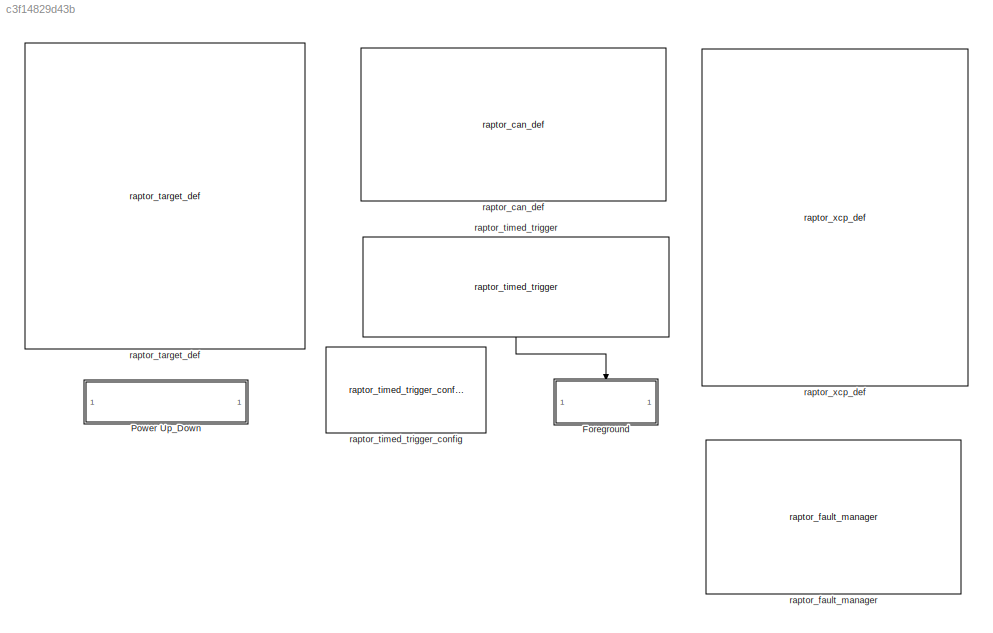
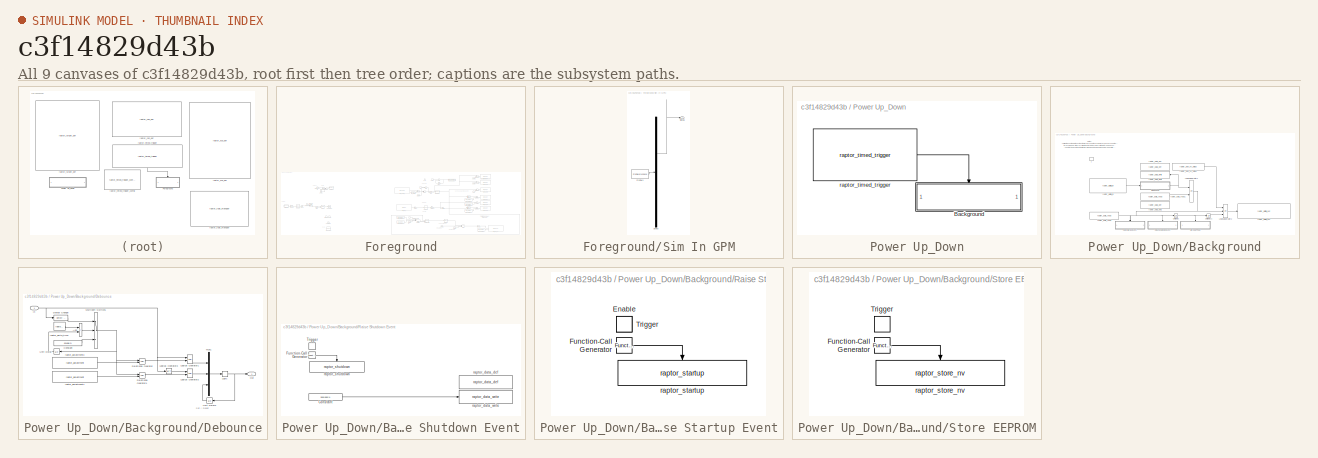
[diagram: thumbnail index - all 9 canvases of the model, root first then tree order]
MODEL slx_c3f14829d43b
KIND model
CONFIG AbsTol = auto
CONFIG EnableMultiTasking = on
CONFIG FixedStep = 0.005
CONFIG InitFcn = try, model_open; catch, end
CONFIG MaxStep = auto
CONFIG MinStep = auto
CONFIG PreLoadFcn = try, model_open; catch, disp('Error occurred while executing model pre-load callback: model_open.m'); disp('Please assure that the MATLAB working directory is set to the model directory before opening.'); end
CONFIG RelTol = 1e-3
CONFIG SampleTimeConstraint = Unconstrained
CONFIG SolverName = FixedStepDiscrete
CONFIG StartTime = 0.0
CONFIG StopTime = 10.0
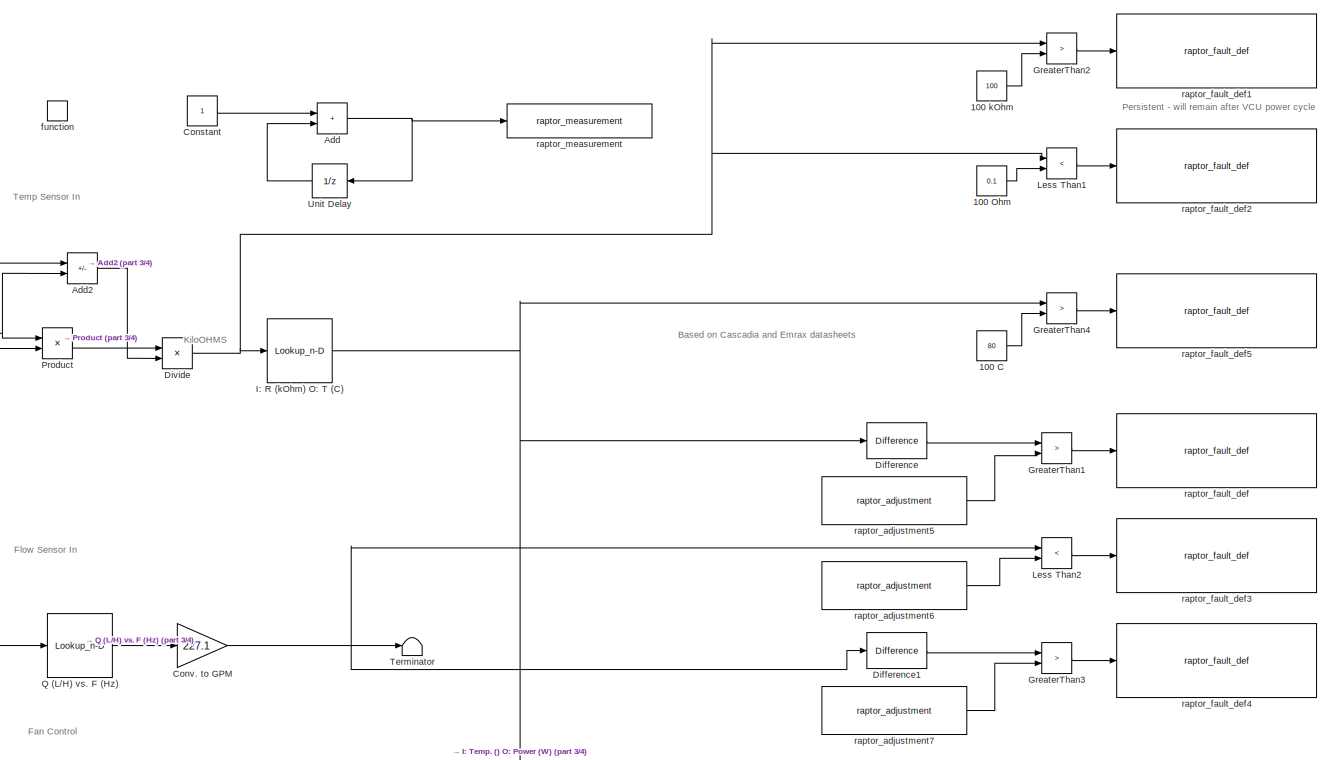
[diagram: Foreground - part 1/4, middle right region]
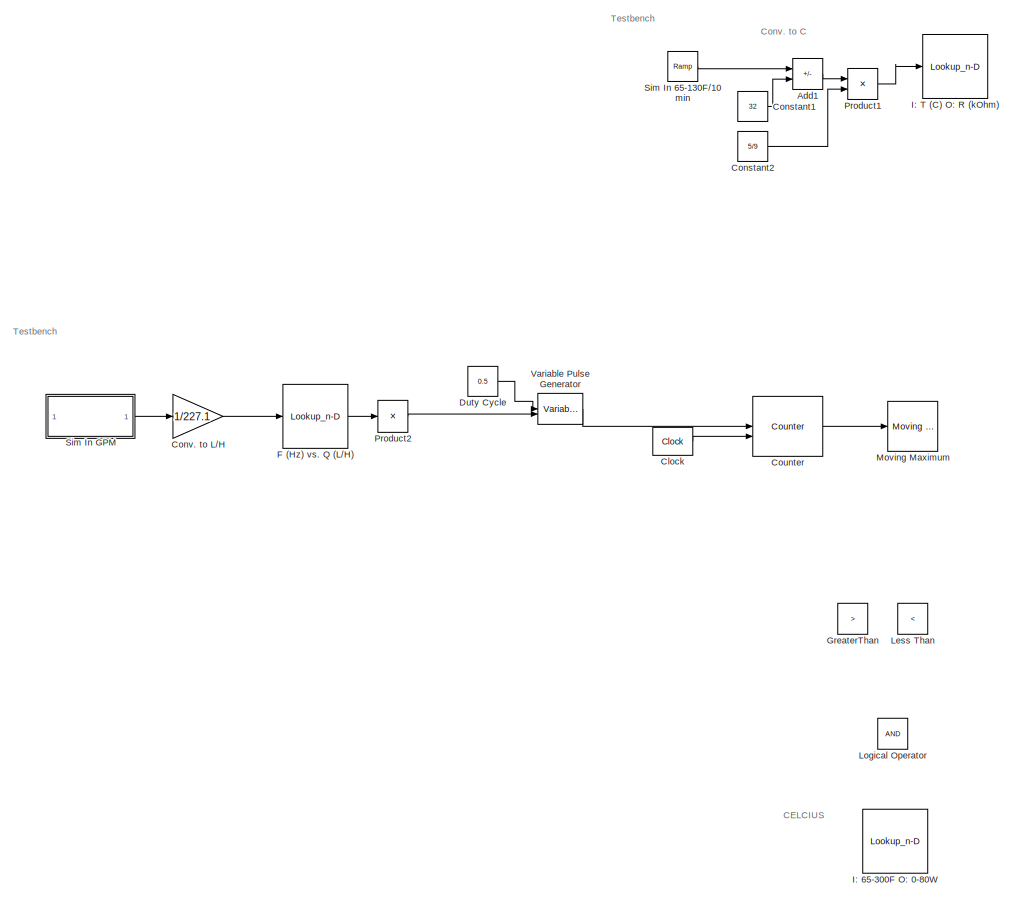
[diagram: Foreground - part 2/4, left side, full height]
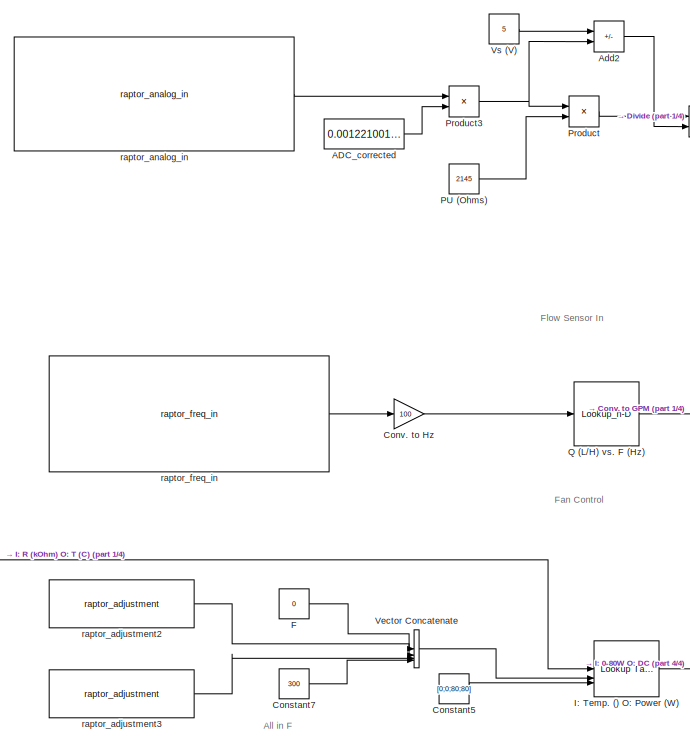
[diagram: Foreground - part 3/4, central region]
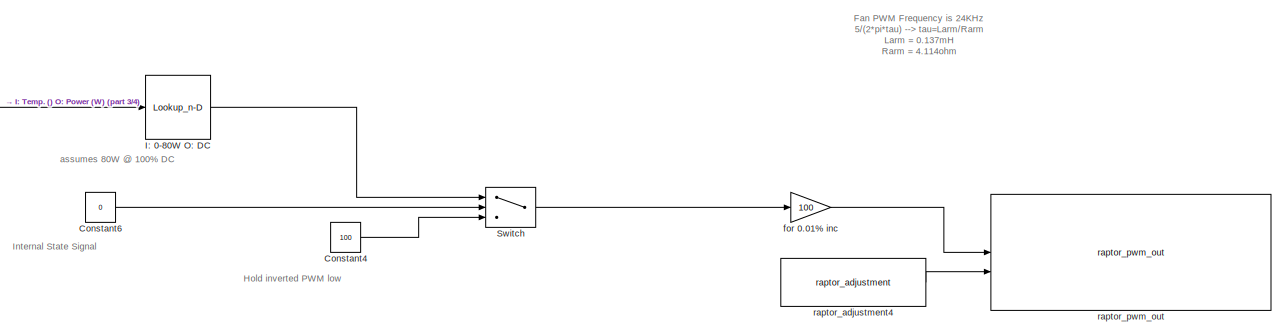
[diagram: Foreground - part 4/4, bottom right region]
BLOCK [SubSystem] Foreground
  RTWSystemCode = Nonreusable function
  TreatAsAtomicUnit = on
BLOCK [Constant] Foreground/100 C
  Value = 80
BLOCK [Constant] Foreground/100 Ohm
  Value = 0.1
BLOCK [Constant] Foreground/100 kOhm
  Value = 100
BLOCK [Constant] Foreground/ADC_corrected
  Value = 0.00122100122
BLOCK [Sum] Foreground/Add
  IconShape = rectangular
BLOCK [Sum] Foreground/Add1
  Commented = on
  IconShape = rectangular
  Inputs = +-
BLOCK [Sum] Foreground/Add2
  IconShape = rectangular
  Inputs = +-
BLOCK [Reference] Foreground/Clock  REF=simulink_extras/Flip Flops/Clock
  Commented = on
  SourceBlock = simulink_extras/Flip Flops/Clock
  SourceType = Digital clock
BLOCK [Constant] Foreground/Constant
BLOCK [Constant] Foreground/Constant1
  Commented = on
  Value = 32
BLOCK [Constant] Foreground/Constant2
  Commented = on
  Value = 5/9
BLOCK [Constant] Foreground/Constant4
  Value = 100
BLOCK [Constant] Foreground/Constant5
  Value = [0;0;80;80]
BLOCK [Constant] Foreground/Constant6
  Value = 0
BLOCK [Constant] Foreground/Constant7
  Value = 300
BLOCK [Gain] Foreground/Conv. to GPM
  Gain = 227.1
BLOCK [Gain] Foreground/Conv. to Hz
  Gain = 100
BLOCK [Gain] Foreground/Conv. to L//H
  Commented = on
  Gain = 1/227.1
BLOCK [Reference] Foreground/Counter  REF=dspswit3/Counter
  Commented = on
  SourceBlock = dspswit3/Counter
  SourceType = Counter
BLOCK [Reference] Foreground/Difference  REF=simulink/Discrete/Difference
  SourceBlock = simulink/Discrete/Difference
  SourceType = Difference
BLOCK [Reference] Foreground/Difference1  REF=simulink/Discrete/Difference
  SourceBlock = simulink/Discrete/Difference
  SourceType = Difference
BLOCK [Product] Foreground/Divide
  Inputs = */
BLOCK [Constant] Foreground/Duty Cycle
  Commented = on
  Value = 0.5
BLOCK [Constant] Foreground/F
  Value = 0
BLOCK [Lookup_n-D] Foreground/F (Hz) vs. Q (L//H)
  BreakpointsForDimension1 = [120;240;360;480;600;720]
  Commented = on
  InputPortMap = u0
  InternalRulePriority = Speed
  NumberOfTableDimensions = 1
  RndMeth = Simplest
  Table = [16;32.5;49.3;65.5;82;90.2]
BLOCK [RelationalOperator] Foreground/GreaterThan
  Commented = on
  InputSameDT = off
  Operator = >
  OutDataTypeStr = boolean
  RndMeth = Simplest
BLOCK [RelationalOperator] Foreground/GreaterThan1
  InputSameDT = off
  Operator = >
  OutDataTypeStr = boolean
  RndMeth = Simplest
BLOCK [RelationalOperator] Foreground/GreaterThan2
  InputSameDT = off
  Operator = >
  OutDataTypeStr = boolean
  RndMeth = Simplest
BLOCK [RelationalOperator] Foreground/GreaterThan3
  InputSameDT = off
  Operator = >
  OutDataTypeStr = boolean
  RndMeth = Simplest
BLOCK [RelationalOperator] Foreground/GreaterThan4
  InputSameDT = off
  Operator = >
  OutDataTypeStr = boolean
  RndMeth = Simplest
BLOCK [Lookup_n-D] Foreground/I: 0-80W O: DC
  BreakpointsForDimension1 = [0;5;10;15;20;25;30;35;40;45;50;55;60;65;70;75;80]
  InputPortMap = u0
  InternalRulePriority = Speed
  NumberOfTableDimensions = 1
  RndMeth = Simplest
  Table = [100;93.75;87.5;81.25;75;68.75;62.5;56.25;50;43.75;37.5;31.25;25;18.75;12.5;6.25;0]
BLOCK [Lookup_n-D] Foreground/I: 65-300F O: 0-80W 
  BreakpointsForDimension1 = [0;65;150;300]
  Commented = on
  InputPortMap = u0
  InternalRulePriority = Speed
  NumberOfTableDimensions = 1
  RndMeth = Simplest
  Table = [0;0;80;80]
BLOCK [Lookup_n-D] Foreground/I: R (kOhm) O: T (C)
  BreakpointsForDimension1 = [0.583;0.6601;0.7487;0.8508;0.9688;1.106;1.265;1.452;1.67;1.928;2.232;2.593;3.025;3.541;4.163;4.914;5.827;6.942;8.311;10;12.1;14.71;17.99;22.13;27.39]
  InputPortMap = u0
  InternalRulePriority = Speed
  NumberOfTableDimensions = 1
  RndMeth = Simplest
  Table = [120;115;110;105;100;95;90;85;80;75;70;65;60;55;50;45;40;35;30;25;20;15;10;5;0]
BLOCK [Lookup_n-D] Foreground/I: T (C) O: R (kOhm)
  BreakpointsForDimension1 = [0;5;10;15;20;25;30;35;40;45;50;55;60;65;70;75;80;85;90;95;100;105;110;115;120]
  Commented = on
  InputPortMap = u0
  InternalRulePriority = Speed
  NumberOfTableDimensions = 1
  RndMeth = Simplest
  Table = [27.39;22.13;17.99;14.71;12.1;10;8.311;6.942;5.827;4.914;4.163;3.541;3.025;2.593;2.232;1.928;1.67;1.452;1.265;1.106;0.9688;0.8508;0.7487;0.6601;0.583]
BLOCK [Reference] Foreground/I: Temp. () O: Power (W)  REF=simulink/Lookup
Tables/Lookup
Table
Dynamic
  SourceBlock = simulink/Lookup\nTables/Lookup\nTable\nDynamic
  SourceType = Lookup Table Dynamic
BLOCK [RelationalOperator] Foreground/Less Than
  Commented = on
  InputSameDT = off
  Operator = <
  OutDataTypeStr = boolean
  RndMeth = Simplest
BLOCK [RelationalOperator] Foreground/Less Than1
  InputSameDT = off
  Operator = <
  OutDataTypeStr = boolean
  RndMeth = Simplest
BLOCK [RelationalOperator] Foreground/Less Than2
  InputSameDT = off
  Operator = <
  OutDataTypeStr = boolean
  RndMeth = Simplest
BLOCK [Logic] Foreground/Logical Operator
  AllPortsSameDT = off
  Commented = on
  OutDataTypeStr = boolean
BLOCK [Reference] Foreground/Moving Maximum  REF=dspstat3/Moving
Maximum
  Commented = on
  SourceBlock = dspstat3/Moving\nMaximum
  SourceType = dsp.MovingMaximum
BLOCK [Constant] Foreground/PU (Ohms)
  Value = 2145
BLOCK [Product] Foreground/Product
BLOCK [Product] Foreground/Product1
  Commented = on
BLOCK [Product] Foreground/Product2
  Commented = on
  Inputs = /
BLOCK [Product] Foreground/Product3
BLOCK [Lookup_n-D] Foreground/Q (L//H) vs. F (Hz)
  BreakpointsForDimension1 = [16;32.5;49.3;65.5;82;90.2]
  ExtrapMethod = Clip
  InputPortMap = u0
  InternalRulePriority = Speed
  NumberOfTableDimensions = 1
  RndMeth = Simplest
  Table = [120;240;360;480;600;720]
BLOCK [Reference] Foreground/Sim In 65-130F//10min  REF=simulink/Sources/Ramp
  Commented = on
  SourceBlock = simulink/Sources/Ramp
  SourceType = Ramp
BLOCK [SubSystem] Foreground/Sim In GPM
  ClipboardFcn = sigbuilder_block('clipboard');
  CloseFcn = sigbuilder_block('close');
  Commented = on
  ContinueFcn = sigbuilder_block('continue');
  CopyFcn = sigbuilder_block('copy');
  DeleteFcn = sigbuilder_block('delete');
  LoadFcn = sigbuilder_block('load');
  MaskHideContents = on
  ModelCloseFcn = sigbuilder_block('modelClose');
  NameChangeFcn = sigbuilder_block('namechange');
  OpenFcn = sigbuilder_block('open',[437.6 199.2 550.4 400 ]);
  PauseFcn = sigbuilder_block('pause');
  PreSaveFcn = sigbuilder_block('preSave');
  StartFcn = sigbuilder_block('start');
  StopFcn = sigbuilder_block('stop');
  Tag = STV Subsys
BLOCK [Demux] Foreground/Sim In GPM/Demux
  DisplayOption = none
  Outputs = 1
  Tag = STV Demux
BLOCK [FromWorkspace] Foreground/Sim In GPM/FromWs
  Tag = STV FromWs
  VariableName = tuvar
BLOCK [Outport] Foreground/Sim In GPM/Signal 1
  Tag = STV Outport
BLOCK [Switch] Foreground/Switch
  Criteria = u2 > Threshold
  InputSameDT = off
  SaturateOnIntegerOverflow = off
BLOCK [Terminator] Foreground/Terminator
BLOCK [UnitDelay] Foreground/Unit Delay
  HasFrameUpgradeWarning = on
  NameLocation = top
  SampleTime = -1
BLOCK [VariablePulseGenerator] Foreground/Variable Pulse Generator
  Commented = on
  SampleTime = 0.1
BLOCK [Concatenate] Foreground/Vector Concatenate
  NameLocation = right
  NumInputs = 4
BLOCK [Constant] Foreground/Vs (V)
  Value = 5
BLOCK [Gain] Foreground/for 0.01% inc
  Gain = 100
  OutDataTypeStr = Inherit: Inherit via back propagation
BLOCK [TriggerPort] Foreground/function
  StatesWhenEnabling = held
  TriggerType = function-call
  VariantControl = Variant
BLOCK [Reference] Foreground/raptor_adjustment2  REF=Raptor_lib/Data Storage/raptor_adjustment
  SourceBlock = Raptor_lib/Data Storage/raptor_adjustment
  SourceProductName = Raptor
  SourceType = Adjustment
BLOCK [Reference] Foreground/raptor_adjustment3  REF=Raptor_lib/Data Storage/raptor_adjustment
  SourceBlock = Raptor_lib/Data Storage/raptor_adjustment
  SourceProductName = Raptor
  SourceType = Adjustment
BLOCK [Reference] Foreground/raptor_adjustment4  REF=Raptor_lib/Data Storage/raptor_adjustment
  SourceBlock = Raptor_lib/Data Storage/raptor_adjustment
  SourceProductName = Raptor
  SourceType = Adjustment
BLOCK [Reference] Foreground/raptor_adjustment5  REF=Raptor_lib/Data Storage/raptor_adjustment
  SourceBlock = Raptor_lib/Data Storage/raptor_adjustment
  SourceProductName = Raptor
  SourceType = Adjustment
BLOCK [Reference] Foreground/raptor_adjustment6  REF=Raptor_lib/Data Storage/raptor_adjustment
  SourceBlock = Raptor_lib/Data Storage/raptor_adjustment
  SourceProductName = Raptor
  SourceType = Adjustment
BLOCK [Reference] Foreground/raptor_adjustment7  REF=Raptor_lib/Data Storage/raptor_adjustment
  SourceBlock = Raptor_lib/Data Storage/raptor_adjustment
  SourceProductName = Raptor
  SourceType = Adjustment
BLOCK [Reference] Foreground/raptor_analog_in  REF=Raptor_lib/Input & Output/raptor_analog_in
  SourceBlock = Raptor_lib/Input & Output/raptor_analog_in
  SourceProductName = Raptor
  SourceType = Analog Input
BLOCK [Reference] Foreground/raptor_fault_def  REF=Raptor_lib/Faults/raptor_fault_def
  SourceBlock = Raptor_lib/Faults/raptor_fault_def
  SourceProductName = Raptor
  SourceType = Fault Definition
BLOCK [Reference] Foreground/raptor_fault_def1  REF=Raptor_lib/Faults/raptor_fault_def
  SourceBlock = Raptor_lib/Faults/raptor_fault_def
  SourceProductName = Raptor
  SourceType = Fault Definition
BLOCK [Reference] Foreground/raptor_fault_def2  REF=Raptor_lib/Faults/raptor_fault_def
  SourceBlock = Raptor_lib/Faults/raptor_fault_def
  SourceProductName = Raptor
  SourceType = Fault Definition
BLOCK [Reference] Foreground/raptor_fault_def3  REF=Raptor_lib/Faults/raptor_fault_def
  SourceBlock = Raptor_lib/Faults/raptor_fault_def
  SourceProductName = Raptor
  SourceType = Fault Definition
BLOCK [Reference] Foreground/raptor_fault_def4  REF=Raptor_lib/Faults/raptor_fault_def
  SourceBlock = Raptor_lib/Faults/raptor_fault_def
  SourceProductName = Raptor
  SourceType = Fault Definition
BLOCK [Reference] Foreground/raptor_fault_def5  REF=Raptor_lib/Faults/raptor_fault_def
  SourceBlock = Raptor_lib/Faults/raptor_fault_def
  SourceProductName = Raptor
  SourceType = Fault Definition
BLOCK [Reference] Foreground/raptor_freq_in  REF=Raptor_lib/Input & Output/raptor_freq_in
  SourceBlock = Raptor_lib/Input & Output/raptor_freq_in
  SourceProductName = Raptor
  SourceType = Frequency Input Block
BLOCK [Reference] Foreground/raptor_measurement  REF=Raptor_lib/Data Storage/raptor_measurement
  SourceBlock = Raptor_lib/Data Storage/raptor_measurement
  SourceProductName = Raptor
  SourceType = Measurement
BLOCK [Reference] Foreground/raptor_pwm_out  REF=Raptor_lib/Input & Output/raptor_pwm_out
  SourceBlock = Raptor_lib/Input & Output/raptor_pwm_out
  SourceProductName = Raptor
  SourceType = PWM Output Block
BLOCK [SubSystem] Power Up_Down
BLOCK [SubSystem] Power Up_Down/Background
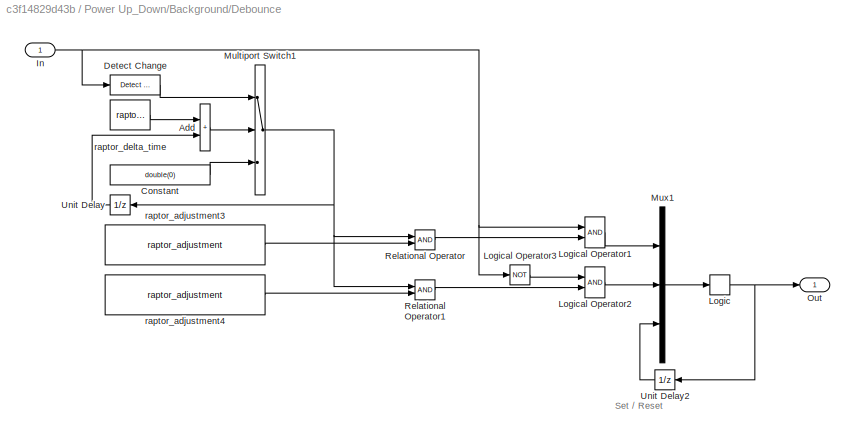
BLOCK [SubSystem] Power Up_Down/Background/Debounce
BLOCK [Sum] Power Up_Down/Background/Debounce/Add
  IconShape = rectangular
BLOCK [Constant] Power Up_Down/Background/Debounce/Constant
  Value = double(0)
BLOCK [Reference] Power Up_Down/Background/Debounce/Detect Change  REF=simulink/Logic and Bit
Operations/Detect
Change
  SourceBlock = simulink/Logic and Bit\nOperations/Detect\nChange
  SourceType = Detect Change
BLOCK [Inport] Power Up_Down/Background/Debounce/In
BLOCK [CombinatorialLogic] Power Up_Down/Background/Debounce/Logic
  TruthTable = [0;1;0;0;1;1;0;0]
BLOCK [Logic] Power Up_Down/Background/Debounce/Logical Operator1
  AllPortsSameDT = off
  OutDataTypeStr = boolean
BLOCK [Logic] Power Up_Down/Background/Debounce/Logical Operator2
  AllPortsSameDT = off
  OutDataTypeStr = boolean
BLOCK [Logic] Power Up_Down/Background/Debounce/Logical Operator3
  AllPortsSameDT = off
  Inputs = 1
  Operator = NOT
  OutDataTypeStr = boolean
BLOCK [MultiPortSwitch] Power Up_Down/Background/Debounce/Multiport Switch1
  DataPortOrder = Zero-based contiguous
  InputSameDT = off
  Inputs = 2
  SaturateOnIntegerOverflow = off
  zeroidx = on
BLOCK [Mux] Power Up_Down/Background/Debounce/Mux1
  DisplayOption = bar
  Inputs = 3
BLOCK [Outport] Power Up_Down/Background/Debounce/Out
  VectorParamsAs1DForOutWhenUnconnected = off
BLOCK [RelationalOperator] Power Up_Down/Background/Debounce/Relational Operator
  InputSameDT = off
  OutDataTypeStr = boolean
BLOCK [RelationalOperator] Power Up_Down/Background/Debounce/Relational Operator1
  InputSameDT = off
  OutDataTypeStr = boolean
BLOCK [UnitDelay] Power Up_Down/Background/Debounce/Unit Delay
  HasFrameUpgradeWarning = on
  SampleTime = -1
BLOCK [UnitDelay] Power Up_Down/Background/Debounce/Unit Delay2
  HasFrameUpgradeWarning = on
  InitialCondition = 1
  SampleTime = -1
BLOCK [Reference] Power Up_Down/Background/Debounce/raptor_adjustment3  REF=Raptor_lib/Data Storage/raptor_adjustment
  SourceBlock = Raptor_lib/Data Storage/raptor_adjustment
  SourceProductName = Raptor
  SourceType = Adjustment
BLOCK [Reference] Power Up_Down/Background/Debounce/raptor_adjustment4  REF=Raptor_lib/Data Storage/raptor_adjustment
  SourceBlock = Raptor_lib/Data Storage/raptor_adjustment
  SourceProductName = Raptor
  SourceType = Adjustment
BLOCK [Reference] Power Up_Down/Background/Debounce/raptor_delta_time  REF=Raptor_lib/Triggers/raptor_delta_time
  SourceBlock = Raptor_lib/Triggers/raptor_delta_time
  SourceProductName = Raptor
  SourceType = Delta Time
BLOCK [Logic] Power Up_Down/Background/Logical Operator1
  Operator = OR
  OutDataTypeStr = boolean
BLOCK [Logic] Power Up_Down/Background/Logical Operator2
  Inputs = 3
  Operator = OR
  OutDataTypeStr = boolean
BLOCK [SubSystem] Power Up_Down/Background/Raise Shutdown Event
  TreatAsAtomicUnit = on
BLOCK [Constant] Power Up_Down/Background/Raise Shutdown Event/Constant
  Value = boolean(1)
BLOCK [Reference] Power Up_Down/Background/Raise Shutdown Event/Function-Call Generator  REF=simulink/Ports &
Subsystems/Function-Call
Generator
  SourceBlock = simulink/Ports &\nSubsystems/Function-Call\nGenerator
  SourceType = Function-Call Generator
BLOCK [TriggerPort] Power Up_Down/Background/Raise Shutdown Event/Trigger
  StatesWhenEnabling = held
  TriggerType = falling
  VariantControl = Variant
BLOCK [Reference] Power Up_Down/Background/Raise Shutdown Event/raptor_data_def  REF=Raptor_lib/Data Storage/raptor_data_def
  SourceBlock = Raptor_lib/Data Storage/raptor_data_def
  SourceProductName = Raptor
  SourceType = Data Store Definition Block
BLOCK [Reference] Power Up_Down/Background/Raise Shutdown Event/raptor_data_write  REF=Raptor_lib/Data Storage/raptor_data_write
  SourceBlock = Raptor_lib/Data Storage/raptor_data_write
  SourceProductName = Raptor
  SourceType = Data Write Block
BLOCK [Reference] Power Up_Down/Background/Raise Shutdown Event/raptor_shutdown  REF=Raptor_lib/Triggers/raptor_shutdown
  SourceBlock = Raptor_lib/Triggers/raptor_shutdown
  SourceProductName = Raptor
  SourceType = Shutdown
BLOCK [SubSystem] Power Up_Down/Background/Raise Startup Event
  TreatAsAtomicUnit = on
BLOCK [EnablePort] Power Up_Down/Background/Raise Startup Event/Enable
BLOCK [Reference] Power Up_Down/Background/Raise Startup Event/Function-Call Generator  REF=simulink/Ports &
Subsystems/Function-Call
Generator
  SourceBlock = simulink/Ports &\nSubsystems/Function-Call\nGenerator
  SourceType = Function-Call Generator
BLOCK [TriggerPort] Power Up_Down/Background/Raise Startup Event/Trigger
  StatesWhenEnabling = held
  VariantControl = Variant
BLOCK [Reference] Power Up_Down/Background/Raise Startup Event/raptor_startup  REF=Raptor_lib/Triggers/raptor_startup
  SourceBlock = Raptor_lib/Triggers/raptor_startup
  SourceProductName = Raptor
  SourceType = Startup
BLOCK [SubSystem] Power Up_Down/Background/Store EEPROM
  TreatAsAtomicUnit = on
BLOCK [Reference] Power Up_Down/Background/Store EEPROM/Function-Call Generator  REF=simulink/Ports &
Subsystems/Function-Call
Generator
  SourceBlock = simulink/Ports &\nSubsystems/Function-Call\nGenerator
  SourceType = Function-Call Generator
BLOCK [TriggerPort] Power Up_Down/Background/Store EEPROM/Trigger
  StatesWhenEnabling = held
  TriggerType = falling
  VariantControl = Variant
BLOCK [Reference] Power Up_Down/Background/Store EEPROM/raptor_store_nv  REF=Raptor_lib/Data Storage/raptor_store_nv
  SourceBlock = Raptor_lib/Data Storage/raptor_store_nv
  SourceProductName = Raptor
  SourceType = Store NonVolatile
BLOCK [UnitDelay] Power Up_Down/Background/Unit Delay
  HasFrameUpgradeWarning = on
  SampleTime = -1
BLOCK [UnitDelay] Power Up_Down/Background/Unit Delay1
  HasFrameUpgradeWarning = on
  SampleTime = -1
BLOCK [TriggerPort] Power Up_Down/Background/f
  TriggerType = function-call
  VariantControl = Variant
  ZeroCross = off
BLOCK [Reference] Power Up_Down/Background/raptor_data_def  REF=Raptor_lib/Data Storage/raptor_data_def
  SourceBlock = Raptor_lib/Data Storage/raptor_data_def
  SourceProductName = Raptor
  SourceType = Data Store Definition Block
BLOCK [Reference] Power Up_Down/Background/raptor_data_def1  REF=Raptor_lib/Data Storage/raptor_data_def
  SourceBlock = Raptor_lib/Data Storage/raptor_data_def
  SourceProductName = Raptor
  SourceType = Data Store Definition Block
BLOCK [Reference] Power Up_Down/Background/raptor_data_read  REF=Raptor_lib/Data Storage/raptor_data_read
  SourceBlock = Raptor_lib/Data Storage/raptor_data_read
  SourceProductName = Raptor
  SourceType = Data Read Block
BLOCK [Reference] Power Up_Down/Background/raptor_data_read1  REF=Raptor_lib/Data Storage/raptor_data_read
  SourceBlock = Raptor_lib/Data Storage/raptor_data_read
  SourceProductName = Raptor
  SourceType = Data Read Block
BLOCK [Reference] Power Up_Down/Background/raptor_data_write  REF=Raptor_lib/Data Storage/raptor_data_write
  SourceBlock = Raptor_lib/Data Storage/raptor_data_write
  SourceProductName = Raptor
  SourceType = Data Write Block
BLOCK [Reference] Power Up_Down/Background/raptor_digital_in  REF=Raptor_lib/Input & Output/raptor_digital_in
  SourceBlock = Raptor_lib/Input & Output/raptor_digital_in
  SourceProductName = Raptor
  SourceType = Digital Input Block
BLOCK [Reference] Power Up_Down/Background/raptor_digital_out  REF=Raptor_lib/Input & Output/raptor_digital_out
  SourceBlock = Raptor_lib/Input & Output/raptor_digital_out
  SourceProductName = Raptor
  SourceType = Digital Output
BLOCK [Reference] Power Up_Down/Background/raptor_sfun_nv_status  REF=Raptor_lib/Data Storage/raptor_sfun_nv_status
  SourceBlock = Raptor_lib/Data Storage/raptor_sfun_nv_status
  SourceProductName = Raptor
  SourceType = Nonvolatile Status
BLOCK [Reference] Power Up_Down/raptor_timed_trigger  REF=Raptor_lib/Triggers/raptor_timed_trigger
  SourceBlock = Raptor_lib/Triggers/raptor_timed_trigger
  SourceProductName = Raptor
  SourceType = Timed Trigger Block
BLOCK [Reference] raptor_can_def  REF=Raptor_lib/CAN/raptor_can_def
  SourceBlock = Raptor_lib/CAN/raptor_can_def
  SourceProductName = Raptor
  SourceType = CAN Definition
BLOCK [Reference] raptor_fault_manager  REF=Raptor_lib/Faults/raptor_fault_manager
  SourceBlock = Raptor_lib/Faults/raptor_fault_manager
  SourceProductName = Raptor
  SourceType = Fault Manager
BLOCK [Reference] raptor_target_def  REF=Raptor_lib/Configuration/raptor_target_def
  SourceBlock = Raptor_lib/Configuration/raptor_target_def
  SourceProductName = Raptor
  SourceType = Target Definition Block
BLOCK [Reference] raptor_timed_trigger  REF=Raptor_lib/Triggers/raptor_timed_trigger
  NameLocation = left
  SourceBlock = Raptor_lib/Triggers/raptor_timed_trigger
  SourceProductName = Raptor
  SourceType = Timed Trigger Block
BLOCK [Reference] raptor_timed_trigger_config  REF=Raptor_lib/Triggers/raptor_timed_trigger_config
  SourceBlock = Raptor_lib/Triggers/raptor_timed_trigger_config
  SourceProductName = Raptor
  SourceType = Timed Trigger Configuration Block
BLOCK [Reference] raptor_xcp_def  REF=Raptor_lib/Configuration/raptor_xcp_def
  SourceBlock = Raptor_lib/Configuration/raptor_xcp_def
  SourceProductName = Raptor
  SourceType = XCP Definition Block
ANNOTATION Foreground: Fan Control
ANNOTATION Foreground: Flow Sensor In
ANNOTATION Foreground: Temp Sensor In
ANNOTATION Foreground: All in F
ANNOTATION Foreground: Based on Cascadia and Emrax datasheets
ANNOTATION Foreground: CELCIUS
ANNOTATION Foreground: Conv. to C
ANNOTATION Foreground: Fan PWM Frequency is 24KHz 5/(2*pi*tau) --> tau=Larm/Rarm Larm = 0.137mH Rarm = 4.114ohm
ANNOTATION Foreground: Hold inverted PWM low
ANNOTATION Foreground: Internal State Signal
ANNOTATION Foreground: KiloOHMS
ANNOTATION Foreground: Persistent - will remain after VCU power cycle
ANNOTATION Foreground: Testbench
ANNOTATION Foreground: assumes 80W @ 100% DC
ANNOTATION Power Up_Down/Background: Notes : - Calling the shutdown task stops the foreground tasks. However, background tasks continue, so the reading of key switch must be in this subsystem to allow the module to resume operation (by calling the startup task) if keyswitch is turned back on before the module actually turns off. - The Startup Event is automatically called when the module is powered on after being completely off. The ...<+96ch>
ANNOTATION Power Up_Down/Background/Debounce: Set / Reset
LINE Foreground/100 C:1 -> Foreground/GreaterThan4:2
LINE Foreground/100 Ohm:1 -> Foreground/Less Than1:2
LINE Foreground/100 kOhm:1 -> Foreground/GreaterThan2:2
LINE Foreground/ADC_corrected:1 -> Foreground/Product3:2
LINE Foreground/Add1:1 -> Foreground/Product1:1
LINE Foreground/Add2:1 -> Foreground/Divide:2
NET Foreground/Add:1 -> Foreground/Unit Delay:1, Foreground/raptor_measurement:1
LINE Foreground/Clock:1 -> Foreground/Counter:2
LINE Foreground/Constant1:1 -> Foreground/Add1:2
LINE Foreground/Constant2:1 -> Foreground/Product1:2
LINE Foreground/Constant4:1 -> Foreground/Switch:3
LINE Foreground/Constant5:1 -> Foreground/I: Temp. () O: Power (W):3
LINE Foreground/Constant6:1 -> Foreground/Switch:2
LINE Foreground/Constant7:1 -> Foreground/Vector Concatenate:4
LINE Foreground/Constant:1 -> Foreground/Add:1
NET Foreground/Conv. to GPM:1 -> Foreground/Difference1:1, Foreground/Less Than2:1, Foreground/Terminator:1
LINE Foreground/Conv. to Hz:1 -> Foreground/Q (L//H) vs. F (Hz):1
LINE Foreground/Conv. to L//H:1 -> Foreground/F (Hz) vs. Q (L//H):1
LINE Foreground/Counter:1 -> Foreground/Moving Maximum:1
LINE Foreground/Difference1:1 -> Foreground/GreaterThan3:1
LINE Foreground/Difference:1 -> Foreground/GreaterThan1:1
NET Foreground/Divide:1 -> Foreground/GreaterThan2:1, Foreground/I: R (kOhm) O: T (C):1, Foreground/Less Than1:1
LINE Foreground/Duty Cycle:1 -> Foreground/Variable Pulse Generator:1
LINE Foreground/F (Hz) vs. Q (L//H):1 -> Foreground/Product2:1
LINE Foreground/F:1 -> Foreground/Vector Concatenate:1
LINE Foreground/GreaterThan1:1 -> Foreground/raptor_fault_def:1
LINE Foreground/GreaterThan2:1 -> Foreground/raptor_fault_def1:1
LINE Foreground/GreaterThan3:1 -> Foreground/raptor_fault_def4:1
LINE Foreground/GreaterThan4:1 -> Foreground/raptor_fault_def5:1
LINE Foreground/I: 0-80W O: DC:1 -> Foreground/Switch:1
NET Foreground/I: R (kOhm) O: T (C):1 -> Foreground/Difference:1, Foreground/GreaterThan4:1, Foreground/I: Temp. () O: Power (W):1
LINE Foreground/I: Temp. () O: Power (W):1 -> Foreground/I: 0-80W O: DC:1
LINE Foreground/Less Than1:1 -> Foreground/raptor_fault_def2:1
LINE Foreground/Less Than2:1 -> Foreground/raptor_fault_def3:1
LINE Foreground/PU (Ohms):1 -> Foreground/Product:2
LINE Foreground/Product1:1 -> Foreground/I: T (C) O: R (kOhm):1
LINE Foreground/Product2:1 -> Foreground/Variable Pulse Generator:2
NET Foreground/Product3:1 -> Foreground/Add2:2, Foreground/Product:1
LINE Foreground/Product:1 -> Foreground/Divide:1
LINE Foreground/Q (L//H) vs. F (Hz):1 -> Foreground/Conv. to GPM:1
LINE Foreground/Sim In 65-130F//10min:1 -> Foreground/Add1:1
LINE Foreground/Sim In GPM:1 -> Foreground/Conv. to L//H:1
LINE Foreground/Switch:1 -> Foreground/for 0.01% inc:1
LINE Foreground/Unit Delay:1 -> Foreground/Add:2
LINE Foreground/Variable Pulse Generator:1 -> Foreground/Counter:1
LINE Foreground/Vector Concatenate:1 -> Foreground/I: Temp. () O: Power (W):2
LINE Foreground/Vs (V):1 -> Foreground/Add2:1
LINE Foreground/for 0.01% inc:1 -> Foreground/raptor_pwm_out:1
LINE Foreground/raptor_adjustment2:1 -> Foreground/Vector Concatenate:2
LINE Foreground/raptor_adjustment3:1 -> Foreground/Vector Concatenate:3
LINE Foreground/raptor_adjustment4:1 -> Foreground/raptor_pwm_out:2
LINE Foreground/raptor_adjustment5:1 -> Foreground/GreaterThan1:2
LINE Foreground/raptor_adjustment6:1 -> Foreground/Less Than2:2
LINE Foreground/raptor_adjustment7:1 -> Foreground/GreaterThan3:2
LINE Foreground/raptor_analog_in:1 -> Foreground/Product3:1
LINE Foreground/raptor_freq_in:1 -> Foreground/Conv. to Hz:1
LINE Power Up_Down/Background/Debounce/Add:1 -> Power Up_Down/Background/Debounce/Multiport Switch1:2
LINE Power Up_Down/Background/Debounce/Constant:1 -> Power Up_Down/Background/Debounce/Multiport Switch1:3
LINE Power Up_Down/Background/Debounce/Detect Change:1 -> Power Up_Down/Background/Debounce/Multiport Switch1:1
NET Power Up_Down/Background/Debounce/In:1 -> Power Up_Down/Background/Debounce/Detect Change:1, Power Up_Down/Background/Debounce/Logical Operator1:1, Power Up_Down/Background/Debounce/Logical Operator3:1
NET Power Up_Down/Background/Debounce/Logic:1 -> Power Up_Down/Background/Debounce/Out:1, Power Up_Down/Background/Debounce/Unit Delay2:1
LINE Power Up_Down/Background/Debounce/Logical Operator1:1 -> Power Up_Down/Background/Debounce/Mux1:1
LINE Power Up_Down/Background/Debounce/Logical Operator2:1 -> Power Up_Down/Background/Debounce/Mux1:2
LINE Power Up_Down/Background/Debounce/Logical Operator3:1 -> Power Up_Down/Background/Debounce/Logical Operator2:1
NET Power Up_Down/Background/Debounce/Multiport Switch1:1 -> Power Up_Down/Background/Debounce/Relational Operator1:1, Power Up_Down/Background/Debounce/Relational Operator:1, Power Up_Down/Background/Debounce/Unit Delay:1
LINE Power Up_Down/Background/Debounce/Mux1:1 -> Power Up_Down/Background/Debounce/Logic:1
LINE Power Up_Down/Background/Debounce/Relational Operator1:1 -> Power Up_Down/Background/Debounce/Logical Operator2:2
LINE Power Up_Down/Background/Debounce/Relational Operator:1 -> Power Up_Down/Background/Debounce/Logical Operator1:2
LINE Power Up_Down/Background/Debounce/Unit Delay2:1 -> Power Up_Down/Background/Debounce/Mux1:3
LINE Power Up_Down/Background/Debounce/Unit Delay:1 -> Power Up_Down/Background/Debounce/Add:2
LINE Power Up_Down/Background/Debounce/raptor_adjustment3:1 -> Power Up_Down/Background/Debounce/Relational Operator:2
LINE Power Up_Down/Background/Debounce/raptor_adjustment4:1 -> Power Up_Down/Background/Debounce/Relational Operator1:2
LINE Power Up_Down/Background/Debounce/raptor_delta_time:1 -> Power Up_Down/Background/Debounce/Add:1
NET Power Up_Down/Background/Debounce:1 -> Power Up_Down/Background/Logical Operator1:1, Power Up_Down/Background/raptor_data_write:1
NET Power Up_Down/Background/Logical Operator1:1 -> Power Up_Down/Background/Logical Operator2:2, Power Up_Down/Background/Raise Shutdown Event:trigger, Power Up_Down/Background/Raise Startup Event:trigger, Power Up_Down/Background/Unit Delay:1
LINE Power Up_Down/Background/Logical Operator2:1 -> Power Up_Down/Background/raptor_digital_out:1
LINE Power Up_Down/Background/Raise Shutdown Event/Constant:1 -> Power Up_Down/Background/Raise Shutdown Event/raptor_data_write:1
LINE Power Up_Down/Background/Raise Shutdown Event/Function-Call Generator:1 -> Power Up_Down/Background/Raise Shutdown Event/raptor_shutdown:trigger
LINE Power Up_Down/Background/Raise Startup Event/Function-Call Generator:1 -> Power Up_Down/Background/Raise Startup Event/raptor_startup:trigger
LINE Power Up_Down/Background/Store EEPROM/Function-Call Generator:1 -> Power Up_Down/Background/Store EEPROM/raptor_store_nv:trigger
LINE Power Up_Down/Background/Unit Delay1:1 -> Power Up_Down/Background/Logical Operator2:3
NET Power Up_Down/Background/Unit Delay:1 -> Power Up_Down/Background/Store EEPROM:trigger, Power Up_Down/Background/Unit Delay1:1
LINE Power Up_Down/Background/raptor_data_read1:1 -> Power Up_Down/Background/Logical Operator1:2
LINE Power Up_Down/Background/raptor_data_read:1 -> Power Up_Down/Background/Raise Startup Event:enable
LINE Power Up_Down/Background/raptor_digital_in:1 -> Power Up_Down/Background/Debounce:1
LINE Power Up_Down/Background/raptor_sfun_nv_status:1 -> Power Up_Down/Background/Logical Operator2:1
LINE Power Up_Down/raptor_timed_trigger:1 -> Power Up_Down/Background:trigger
LINE raptor_timed_trigger:1 -> Foreground:trigger
note: NET lines group one-source signal fan-out (src -> all destinations, sorted); 1:1 wires keep LINE
